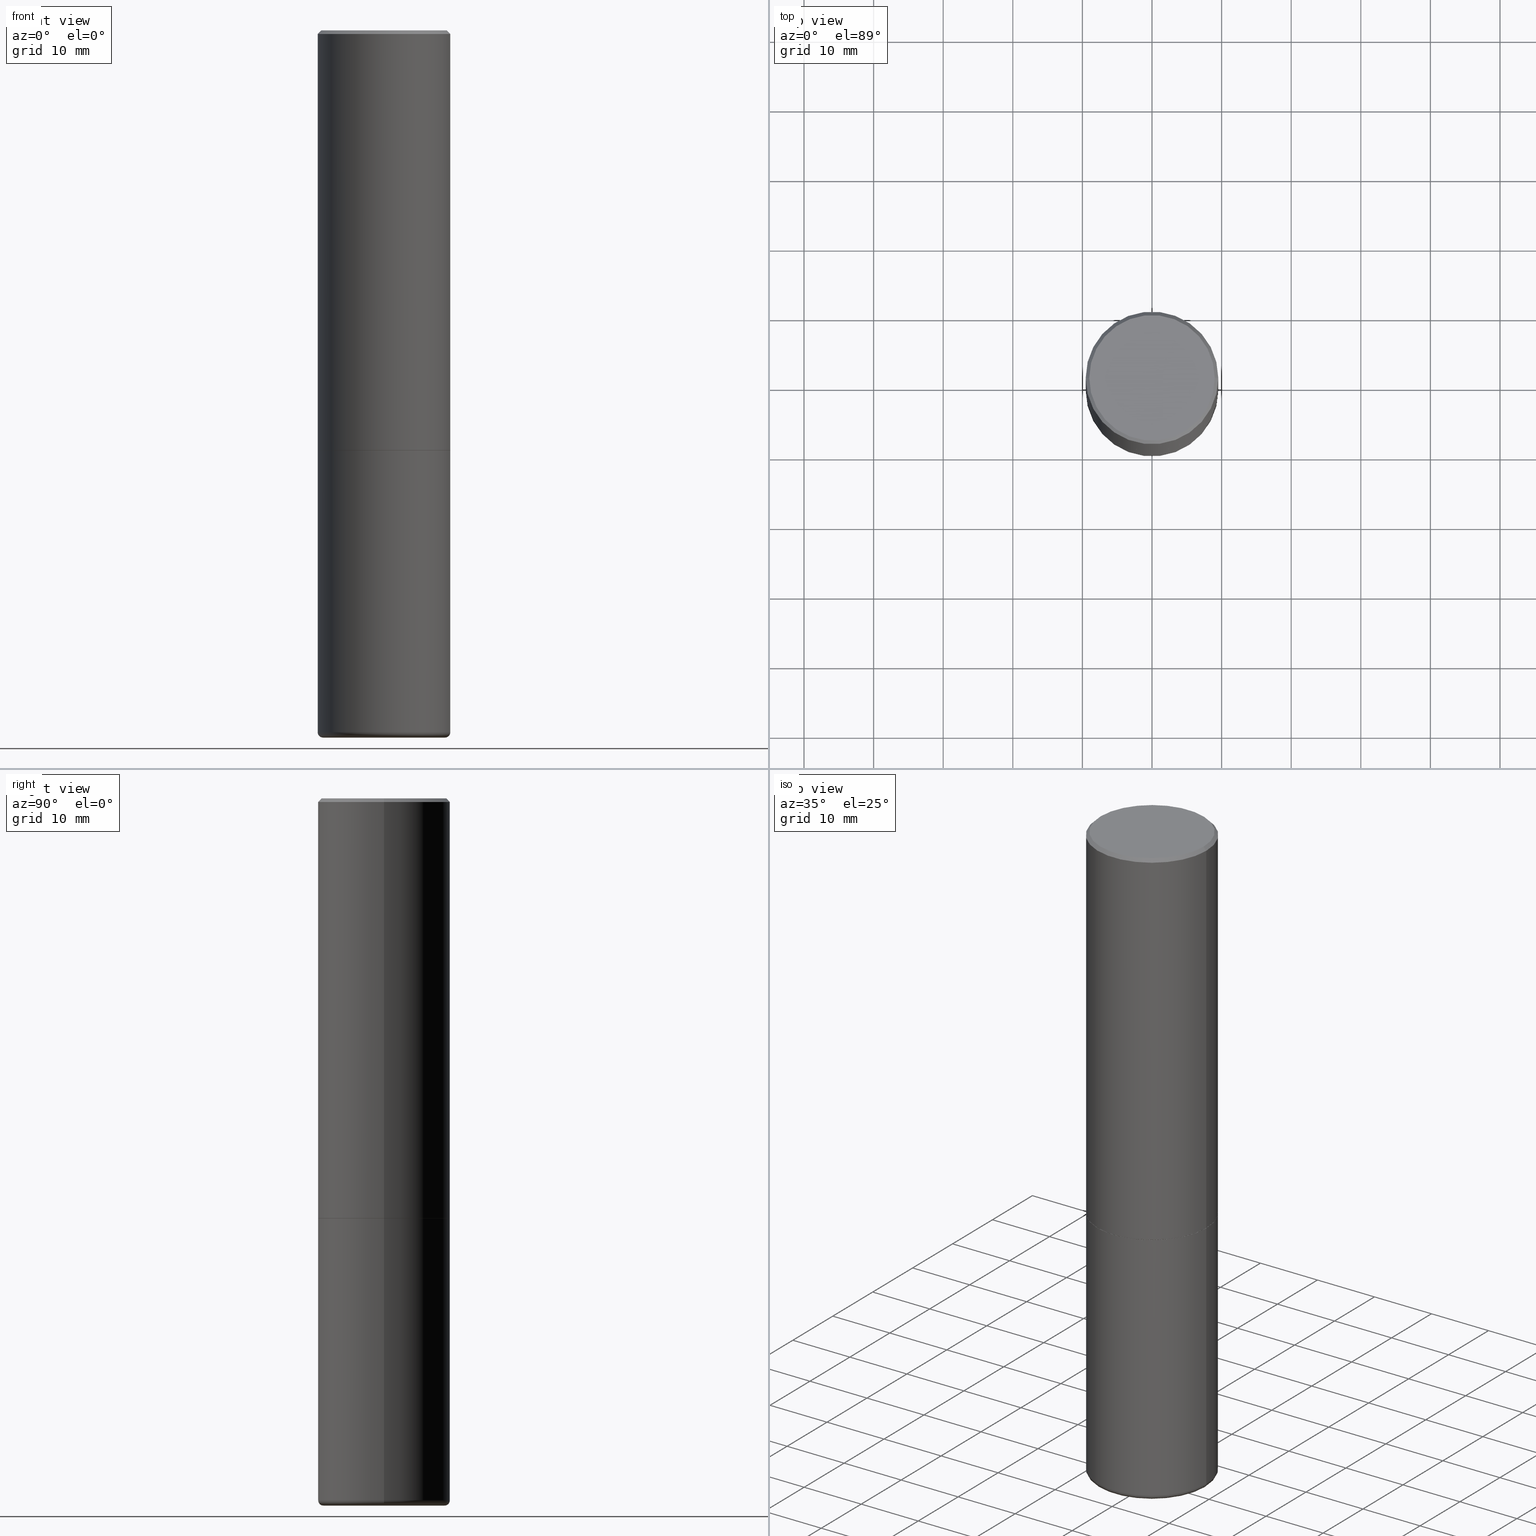
[diagram: canonical four-view strip — front | top / right | iso, engineering-drawing reading convention]
A machine part, canonical four-view strip (front | top / right | iso — engineering-drawing reading convention). The complete STEP part file that produces these views, byte-faithful:
ISO-10303-21;
HEADER;
FILE_DESCRIPTION (( 'STEP AP203' ),
    '1' );
FILE_NAME ('34807.STEP',
    '2022-11-02T20:19:45',
    ( '' ),
    ( '' ),
    'SwSTEP 2.0',
    'SolidWorks 2022',
    '' );
FILE_SCHEMA (( 'CONFIG_CONTROL_DESIGN' ));
ENDSEC;

DATA;
#1 = DIRECTION ( 'NONE',  ( -2.445468806185136597E-29, 3.491481338843145583E-15, 1.000000000000000000 ) ) ;
#2 = FACE_OUTER_BOUND ( 'NONE', #266, .T. ) ;
#3 = DATE_AND_TIME ( #459, #409 ) ;
#4 = DIRECTION ( 'NONE',  ( 1.000000000000000000, -6.982962677686268288E-15, 0.000000000000000000 ) ) ;
#5 = CONICAL_SURFACE ( 'NONE', #301, 0.3447382039350492255, 1.562069680534943661 ) ;
#6 = APPROVAL_PERSON_ORGANIZATION ( #194, #453, #90 ) ;
#7 = ADVANCED_BREP_SHAPE_REPRESENTATION ( '34807', ( #162, #9, #476 ), #335 ) ;
#8 = LINE ( 'NONE', #16, #136 ) ;
#9 = MANIFOLD_SOLID_BREP ( 'Body-Move/Copy2[2]', #197 ) ;
#10 = FACE_OUTER_BOUND ( 'NONE', #222, .T. ) ;
#11 = ORIENTED_EDGE ( 'NONE', *, *, #111, .F. ) ;
#12 = DIRECTION ( 'NONE',  ( 1.000000000000000000, -6.982962677686263555E-15, 4.883557194083111219E-29 ) ) ;
#13 = EDGE_CURVE ( 'NONE', #386, #225, #66, .T. ) ;
#14 = EDGE_LOOP ( 'NONE', ( #146, #341, #187, #445 ) ) ;
#15 = COORDINATED_UNIVERSAL_TIME_OFFSET ( 5, 0, .BEHIND. ) ;
#16 = CARTESIAN_POINT ( 'NONE',  ( 0.3749999999999992784, -2.642516375941182506E-15, -0.02000000000000018083 ) ) ;
#17 = VERTEX_POINT ( 'NONE', #165 ) ;
#18 = DIRECTION ( 'NONE',  ( -2.445468806185136597E-29, 3.491481338843145583E-15, 1.000000000000000000 ) ) ;
#19 = UNCERTAINTY_MEASURE_WITH_UNIT (LENGTH_MEASURE( 1.000000000000000082E-05 ), #77, 'distance_accuracy_value', 'NONE');
#20 = EDGE_LOOP ( 'NONE', ( #435, #322, #305, #482 ) ) ;
#21 = DATE_AND_TIME ( #185, #208 ) ;
#22 = DATE_AND_TIME ( #474, #270 ) ;
#23 = CARTESIAN_POINT ( 'NONE',  ( 2.478951750578617898E-15, 0.3549999999999990941, -1.237341619044263272E-15 ) ) ;
#24 = EDGE_LOOP ( 'NONE', ( #95, #207, #433, #218 ) ) ;
#25 = DIRECTION ( 'NONE',  ( 2.445468806185136597E-29, -3.491481338843145583E-15, -1.000000000000000000 ) ) ;
#26 = ADVANCED_FACE ( 'NONE', ( #209 ), #313, .F. ) ;
#27 = ORIENTED_EDGE ( 'NONE', *, *, #246, .F. ) ;
#28 = PRODUCT_DEFINITION_FORMATION_WITH_SPECIFIED_SOURCE ( 'ANY', '', #89, .NOT_KNOWN. ) ;
#29 = ORIENTED_EDGE ( 'NONE', *, *, #195, .F. ) ;
#30 = CYLINDRICAL_SURFACE ( 'NONE', #430, 0.3749999999999993894 ) ;
#31 = VERTEX_POINT ( 'NONE', #478 ) ;
#32 = ADVANCED_FACE ( 'NONE', ( #487 ), #373, .T. ) ;
#33 = LINE ( 'NONE', #172, #353 ) ;
#34 = DIRECTION ( 'NONE',  ( 1.000000000000000000, -6.982962677686265133E-15, 0.000000000000000000 ) ) ;
#35 = CARTESIAN_POINT ( 'NONE',  ( 0.3749999999999995559, -1.090738770254597397E-14, -2.373999999999999666 ) ) ;
#36 = DIRECTION ( 'NONE',  ( 1.000000000000000000, 0.000000000000000000, 0.000000000000000000 ) ) ;
#37 = DIRECTION ( 'NONE',  ( 1.000000000000000000, -6.982962677686266711E-15, 4.876176775795936353E-29 ) ) ;
#38 = EDGE_CURVE ( 'NONE', #394, #258, #489, .T. ) ;
#39 = DIRECTION ( 'NONE',  ( 1.000000000000000000, -6.982962677686268288E-15, 0.000000000000000000 ) ) ;
#40 = CC_DESIGN_SECURITY_CLASSIFICATION ( #456, ( #28 ) ) ;
#41 = ORIENTED_EDGE ( 'NONE', *, *, #300, .T. ) ;
#42 = DIRECTION ( 'NONE',  ( -1.000000000000000000, 6.982962677686268288E-15, 0.000000000000000000 ) ) ;
#43 = COORDINATED_UNIVERSAL_TIME_OFFSET ( 5, 0, .BEHIND. ) ;
#44 = CC_DESIGN_PERSON_AND_ORGANIZATION_ASSIGNMENT ( #371, #378, ( #456 ) ) ;
#45 = CARTESIAN_POINT ( 'NONE',  ( 9.708513954033757613E-29, -1.386118490355461518E-14, -3.970001142308074993 ) ) ;
#46 = ORIENTED_EDGE ( 'NONE', *, *, #124, .T. ) ;
#47 = ORIENTED_EDGE ( 'NONE', *, *, #486, .T. ) ;
#48 = CARTESIAN_POINT ( 'NONE',  ( 9.708513954033757613E-29, -1.386118490355461518E-14, -3.970001142308074993 ) ) ;
#49 = CIRCLE ( 'NONE', #310, 0.3749999999999995559 ) ;
#50 = AXIS2_PLACEMENT_3D ( 'NONE', #45, #468, #229 ) ;
#51 = EDGE_LOOP ( 'NONE', ( #397, #188 ) ) ;
#52 = ORIENTED_EDGE ( 'NONE', *, *, #246, .T. ) ;
#53 = DIRECTION ( 'NONE',  ( -2.445468806185136597E-29, 3.491481338843145583E-15, 1.000000000000000000 ) ) ;
#54 = VERTEX_POINT ( 'NONE', #444 ) ;
#55 = EDGE_CURVE ( 'NONE', #304, #155, #249, .T. ) ;
#56 = APPROVAL_DATE_TIME ( #22, #453 ) ;
#57 = ORIENTED_EDGE ( 'NONE', *, *, #13, .T. ) ;
#58 = ORIENTED_EDGE ( 'NONE', *, *, #13, .F. ) ;
#59 = CONICAL_SURFACE ( 'NONE', #190, 0.3047407039350492619, 1.535889741755010807 ) ;
#60 = AXIS2_PLACEMENT_3D ( 'NONE', #87, #275, #387 ) ;
#61 = CARTESIAN_POINT ( 'NONE',  ( 0.3749999999999993894, -2.618611004132345678E-15, 1.828566290923473120E-29 ) ) ;
#62 = EDGE_CURVE ( 'NONE', #152, #394, #448, .T. ) ;
#63 = VERTEX_POINT ( 'NONE', #314 ) ;
#64 = ORIENTED_EDGE ( 'NONE', *, *, #492, .F. ) ;
#65 = DIRECTION ( 'NONE',  ( -1.000000000000000000, 6.982962677686265922E-15, -4.876176775795935793E-29 ) ) ;
#66 = CIRCLE ( 'NONE', #359, 0.3749999999999993339 ) ;
#67 = CIRCLE ( 'NONE', #466, 0.3739999999999995550 ) ;
#68 = CARTESIAN_POINT ( 'NONE',  ( 0.3749999999999995559, -1.091087918388481698E-14, -2.375000000000000000 ) ) ;
#69 = ORIENTED_EDGE ( 'NONE', *, *, #124, .F. ) ;
#70 = ADVANCED_FACE ( 'NONE', ( #237 ), #59, .F. ) ;
#71 = DIRECTION ( 'NONE',  ( -0.7071067811865232589, 7.493145998870265808E-15, 0.7071067811865715536 ) ) ;
#72 = FACE_OUTER_BOUND ( 'NONE', #119, .T. ) ;
#73 = APPLICATION_CONTEXT ( 'configuration controlled 3d designs of mechanical parts and assemblies' ) ;
#74 = CARTESIAN_POINT ( 'NONE',  ( 9.708513954033757613E-29, -1.386118490355461518E-14, -3.970001142308074993 ) ) ;
#75 = ADVANCED_FACE ( 'NONE', ( #404 ), #441, .F. ) ;
#76 = APPROVAL_ROLE ( '' ) ;
#77 =( CONVERSION_BASED_UNIT ( 'INCH', #414 ) LENGTH_UNIT ( ) NAMED_UNIT ( #419 ) );
#78 = CARTESIAN_POINT ( 'NONE',  ( 9.781875224740545266E-29, -1.396592535537258075E-14, -3.999999999999999556 ) ) ;
#79 = AXIS2_PLACEMENT_3D ( 'NONE', #463, #346, #82 ) ;
#80 = EDGE_CURVE ( 'NONE', #443, #54, #291, .T. ) ;
#81 = EDGE_LOOP ( 'NONE', ( #280, #425, #396 ) ) ;
#82 = DIRECTION ( 'NONE',  ( 1.000000000000000000, -6.982962677686265133E-15, 0.000000000000000000 ) ) ;
#83 = EDGE_LOOP ( 'NONE', ( #132, #161, #11, #64 ) ) ;
#84 = CARTESIAN_POINT ( 'NONE',  ( 5.807988414689699417E-29, -8.292268179752470118E-15, -2.375000000000000000 ) ) ;
#85 = CIRCLE ( 'NONE', #50, 0.3749999999999993339 ) ;
#86 = ORIENTED_EDGE ( 'NONE', *, *, #285, .T. ) ;
#87 = CARTESIAN_POINT ( 'NONE',  ( 5.807988414689699417E-29, -8.292268179752470118E-15, -2.375000000000000000 ) ) ;
#88 = DIRECTION ( 'NONE',  ( -2.445468806185136597E-29, 3.491481338843145583E-15, 1.000000000000000000 ) ) ;
#89 = PRODUCT ( '34807', '34807', '', ( #471 ) ) ;
#90 = APPROVAL_ROLE ( '' ) ;
#91 = VERTEX_POINT ( 'NONE', #239 ) ;
#92 = DIRECTION ( 'NONE',  ( -2.445468806185136597E-29, 3.491481338843145583E-15, 1.000000000000000000 ) ) ;
#93 = AXIS2_PLACEMENT_3D ( 'NONE', #214, #98, #139 ) ;
#94 = CIRCLE ( 'NONE', #60, 0.3749999999999995559 ) ;
#95 = ORIENTED_EDGE ( 'NONE', *, *, #421, .F. ) ;
#96 = CARTESIAN_POINT ( 'NONE',  ( 9.781021626775434250E-29, -1.396470664370530441E-14, -3.999650947105539256 ) ) ;
#97 = CARTESIAN_POINT ( 'NONE',  ( 4.890937612370316949E-31, -6.982962677686354471E-17, -0.02000000000000018083 ) ) ;
#98 = DIRECTION ( 'NONE',  ( -2.445468806185136597E-29, 3.491481338843145583E-15, 1.000000000000000000 ) ) ;
#99 = FACE_OUTER_BOUND ( 'NONE', #20, .T. ) ;
#100 = VECTOR ( 'NONE', #290, 39.37007874015748143 ) ;
#101 = VECTOR ( 'NONE', #109, 39.37007874015748143 ) ;
#102 = DIRECTION ( 'NONE',  ( -2.445468806185136597E-29, 3.491481338843145583E-15, 1.000000000000000000 ) ) ;
#103 = DIRECTION ( 'NONE',  ( -2.445468806185136597E-29, 3.491481338843145583E-15, 1.000000000000000000 ) ) ;
#104 = EDGE_CURVE ( 'NONE', #386, #155, #395, .T. ) ;
#105 = AXIS2_PLACEMENT_3D ( 'NONE', #362, #399, #273 ) ;
#106 = CIRCLE ( 'NONE', #360, 0.3047407039350492619 ) ;
#107 = FACE_OUTER_BOUND ( 'NONE', #429, .T. ) ;
#108 = PERSON_AND_ORGANIZATION_ROLE ( 'creator' ) ;
#109 = DIRECTION ( 'NONE',  ( -2.445468806185136877E-29, 3.491481338843145188E-15, 1.000000000000000000 ) ) ;
#110 = DIRECTION ( 'NONE',  ( -2.445468806185136597E-29, 3.491481338843145583E-15, 1.000000000000000000 ) ) ;
#111 = EDGE_CURVE ( 'NONE', #343, #242, #475, .T. ) ;
#112 = DATE_AND_TIME ( #345, #250 ) ;
#113 = DIRECTION ( 'NONE',  ( 2.445468806185136597E-29, -3.491481338843145583E-15, -1.000000000000000000 ) ) ;
#114 = VECTOR ( 'NONE', #71, 39.37007874015748854 ) ;
#115 = AXIS2_PLACEMENT_3D ( 'NONE', #48, #217, #12 ) ;
#116 = ORIENTED_EDGE ( 'NONE', *, *, #55, .T. ) ;
#117 = ORIENTED_EDGE ( 'NONE', *, *, #285, .F. ) ;
#118 = DIRECTION ( 'NONE',  ( 1.000000000000000000, -6.982962677686265133E-15, 0.000000000000000000 ) ) ;
#119 = EDGE_LOOP ( 'NONE', ( #240, #469, #233, #465 ) ) ;
#120 = PERSON_AND_ORGANIZATION ( #388, #168 ) ;
#121 = DIRECTION ( 'NONE',  ( 0.7071067811865476838, -7.319954787623257623E-15, -0.7071067811865473507 ) ) ;
#122 = CC_DESIGN_PERSON_AND_ORGANIZATION_ASSIGNMENT ( #120, #177, ( #89 ) ) ;
#123 = APPROVAL_PERSON_ORGANIZATION ( #227, #126, #381 ) ;
#124 = EDGE_CURVE ( 'NONE', #343, #225, #344, .T. ) ;
#125 = DIRECTION ( 'NONE',  ( 1.000000000000000000, -6.982962677686268288E-15, 0.000000000000000000 ) ) ;
#126 = APPROVAL ( #252, 'UNSPECIFIED' ) ;
#127 = VERTEX_POINT ( 'NONE', #323 ) ;
#128 = DIRECTION ( 'NONE',  ( -2.445468806185136597E-29, 3.491481338843145583E-15, 1.000000000000000000 ) ) ;
#129 = DIRECTION ( 'NONE',  ( -2.445468806185136597E-29, 3.491481338843145583E-15, 1.000000000000000000 ) ) ;
#130 = CIRCLE ( 'NONE', #375, 0.3549999999999990941 ) ;
#131 = DIRECTION ( 'NONE',  ( 2.445468806185136597E-29, -3.491481338843145583E-15, -1.000000000000000000 ) ) ;
#132 = ORIENTED_EDGE ( 'NONE', *, *, #368, .T. ) ;
#133 = DIRECTION ( 'NONE',  ( -2.445468806185136597E-29, 3.491481338843145583E-15, 1.000000000000000000 ) ) ;
#134 = DIRECTION ( 'NONE',  ( 2.438088387897960049E-29, -3.491481338843145188E-15, -1.000000000000000000 ) ) ;
#135 = DIRECTION ( 'NONE',  ( -1.000000000000000000, 6.982962677686267499E-15, 0.000000000000000000 ) ) ;
#136 = VECTOR ( 'NONE', #121, 39.37007874015748143 ) ;
#137 = DIRECTION ( 'NONE',  ( 0.7071067811865232589, -2.468850131082003836E-15, 0.7071067811865715536 ) ) ;
#138 = CARTESIAN_POINT ( 'NONE',  ( -1.043851414335219820E-46, 1.490343170380447200E-32, 4.268512490100411279E-18 ) ) ;
#139 = DIRECTION ( 'NONE',  ( 1.000000000000000000, -6.982962677686266711E-15, 4.876176775795936353E-29 ) ) ;
#140 = CIRCLE ( 'NONE', #400, 0.3447382039350492255 ) ;
#141 = CC_DESIGN_APPROVAL ( #477, ( #28 ) ) ;
#142 = LINE ( 'NONE', #181, #101 ) ;
#143 = CARTESIAN_POINT ( 'NONE',  ( 0.000000000000000000, 0.000000000000000000, 0.000000000000000000 ) ) ;
#144 = ADVANCED_FACE ( 'NONE', ( #99 ), #244, .T. ) ;
#145 = CARTESIAN_POINT ( 'NONE',  ( 0.3749999999999993339, -1.647979590768696204E-14, -3.970001142308074993 ) ) ;
#146 = ORIENTED_EDGE ( 'NONE', *, *, #398, .T. ) ;
#147 = APPROVAL_DATE_TIME ( #3, #126 ) ;
#148 = DIRECTION ( 'NONE',  ( 1.000000000000000000, -6.982962677686267499E-15, 0.000000000000000000 ) ) ;
#149 = ORIENTED_EDGE ( 'NONE', *, *, #470, .T. ) ;
#150 = ORIENTED_EDGE ( 'NONE', *, *, #80, .T. ) ;
#151 = CARTESIAN_POINT ( 'NONE',  ( 5.807988414689699417E-29, -8.292268179752470118E-15, -2.375000000000000000 ) ) ;
#152 = VERTEX_POINT ( 'NONE', #35 ) ;
#153 = CALENDAR_DATE ( 2022, 2, 11 ) ;
#154 = DIRECTION ( 'NONE',  ( 0.9999619230641714207, -6.890705306874777996E-15, -0.008726535498355246501 ) ) ;
#155 = VERTEX_POINT ( 'NONE', #68 ) ;
#156 = EDGE_CURVE ( 'NONE', #443, #127, #210, .T. ) ;
#157 = EDGE_LOOP ( 'NONE', ( #47, #116 ) ) ;
#158 = DIRECTION ( 'NONE',  ( 1.000000000000000000, -6.982962677686265133E-15, 4.876231632512000515E-29 ) ) ;
#159 = AXIS2_PLACEMENT_3D ( 'NONE', #390, #134, #485 ) ;
#160 = AXIS2_PLACEMENT_3D ( 'NONE', #342, #53, #118 ) ;
#161 = ORIENTED_EDGE ( 'NONE', *, *, #317, .T. ) ;
#162 = MANIFOLD_SOLID_BREP ( 'Body-Move/Copy2[1]', #319 ) ;
#163 = EDGE_CURVE ( 'NONE', #54, #152, #247, .T. ) ;
#164 = CARTESIAN_POINT ( 'NONE',  ( 0.3749999999999993894, -2.618611004132345678E-15, 1.828566290923473120E-29 ) ) ;
#165 = CARTESIAN_POINT ( 'NONE',  ( -0.3549999999999990941, 2.513866563967049547E-15, 4.268512490082953109E-18 ) ) ;
#166 = VECTOR ( 'NONE', #201, 39.37007874015748143 ) ;
#167 = DIRECTION ( 'NONE',  ( 1.000000000000000000, -6.982962677686267499E-15, 0.000000000000000000 ) ) ;
#168 = ORGANIZATION ( 'UNSPECIFIED', 'UNSPECIFIED', '' ) ;
#169 = DIRECTION ( 'NONE',  ( -1.000000000000000000, 7.105427357601001859E-15, 0.000000000000000000 ) ) ;
#170 = ADVANCED_FACE ( 'NONE', ( #2 ), #173, .T. ) ;
#171 = DIRECTION ( 'NONE',  ( 2.445468806185136597E-29, -3.491481338843145583E-15, -1.000000000000000000 ) ) ;
#172 = CARTESIAN_POINT ( 'NONE',  ( -0.3749999999999992784, 2.548781377355481985E-15, -0.02000000000000018083 ) ) ;
#173 = TOROIDAL_SURFACE ( 'NONE', #464, 0.3450000000000003064, 0.02999999999999943337 ) ;
#174 = VECTOR ( 'NONE', #307, 39.37007874015748143 ) ;
#175 = FACE_OUTER_BOUND ( 'NONE', #193, .T. ) ;
#176 = DIRECTION ( 'NONE',  ( 1.000000000000000000, -6.982962677686263555E-15, 4.883557194083111219E-29 ) ) ;
#177 = PERSON_AND_ORGANIZATION_ROLE ( 'design_owner' ) ;
#178 = CARTESIAN_POINT ( 'NONE',  ( 9.781875224740545266E-29, -1.396592535537258075E-14, -3.999999999999999556 ) ) ;
#179 = VECTOR ( 'NONE', #439, 39.37007874015748143 ) ;
#180 = AXIS2_PLACEMENT_3D ( 'NONE', #151, #110, #379 ) ;
#181 = CARTESIAN_POINT ( 'NONE',  ( -0.3749999999999993894, 2.664535259100371358E-15, -1.844600658845586515E-29 ) ) ;
#182 =( NAMED_UNIT ( * ) SI_UNIT ( $, .STERADIAN. ) SOLID_ANGLE_UNIT ( ) );
#183 = CARTESIAN_POINT ( 'NONE',  ( 4.890937612370316949E-31, -6.982962677686354471E-17, -0.02000000000000018083 ) ) ;
#184 = VERTEX_POINT ( 'NONE', #454 ) ;
#185 = CALENDAR_DATE ( 2022, 2, 11 ) ;
#186 = DIRECTION ( 'NONE',  ( -2.445468806185136597E-29, 3.491481338843145583E-15, 1.000000000000000000 ) ) ;
#187 = ORIENTED_EDGE ( 'NONE', *, *, #363, .F. ) ;
#188 = ORIENTED_EDGE ( 'NONE', *, *, #80, .F. ) ;
#189 = COORDINATED_UNIVERSAL_TIME_OFFSET ( 5, 0, .BEHIND. ) ;
#190 = AXIS2_PLACEMENT_3D ( 'NONE', #96, #25, #274 ) ;
#191 = ORIENTED_EDGE ( 'NONE', *, *, #426, .F. ) ;
#192 = CARTESIAN_POINT ( 'NONE',  ( 5.807988414689699417E-29, -8.292268179752470118E-15, -2.375000000000000000 ) ) ;
#193 = EDGE_LOOP ( 'NONE', ( #57, #263, #422, #264 ) ) ;
#194 = PERSON_AND_ORGANIZATION ( #388, #168 ) ;
#195 = EDGE_CURVE ( 'NONE', #127, #152, #49, .T. ) ;
#196 = DIRECTION ( 'NONE',  ( -0.9999619230641714207, 6.952228252019235511E-15, -0.008726535498355246501 ) ) ;
#197 = CLOSED_SHELL ( 'NONE', ( #32, #144, #272, #438, #202, #309, #403, #26 ) ) ;
#198 = CIRCLE ( 'NONE', #245, 0.3749999999999992784 ) ;
#199 = DIRECTION ( 'NONE',  ( 1.000000000000000000, -6.982962677686269866E-15, 0.000000000000000000 ) ) ;
#200 = DIRECTION ( 'NONE',  ( -1.000000000000000000, 6.982962677686265133E-15, 0.000000000000000000 ) ) ;
#201 = DIRECTION ( 'NONE',  ( -2.445468806185136877E-29, 3.491481338843145188E-15, 1.000000000000000000 ) ) ;
#202 = ADVANCED_FACE ( 'NONE', ( #407 ), #30, .T. ) ;
#203 = DIRECTION ( 'NONE',  ( 2.438088387897960049E-29, -3.491481338843145188E-15, -1.000000000000000000 ) ) ;
#204 = FACE_OUTER_BOUND ( 'NONE', #484, .T. ) ;
#205 = CC_DESIGN_PERSON_AND_ORGANIZATION_ASSIGNMENT ( #333, #411, ( #28 ) ) ;
#206 = AXIS2_PLACEMENT_3D ( 'NONE', #138, #248, #282 ) ;
#207 = ORIENTED_EDGE ( 'NONE', *, *, #195, .T. ) ;
#208 = LOCAL_TIME ( 16, 19, 45.00000000000000000, #43 ) ;
#209 = FACE_OUTER_BOUND ( 'NONE', #416, .T. ) ;
#210 = LINE ( 'NONE', #367, #114 ) ;
#211 = ADVANCED_FACE ( 'NONE', ( #406 ), #5, .F. ) ;
#212 = AXIS2_PLACEMENT_3D ( 'NONE', #480, #92, #361 ) ;
#213 = CONICAL_SURFACE ( 'NONE', #384, 0.3047407039350492619, 1.535889741755010807 ) ;
#214 = CARTESIAN_POINT ( 'NONE',  ( 0.000000000000000000, 0.000000000000000000, 0.000000000000000000 ) ) ;
#215 = APPROVAL_DATE_TIME ( #306, #477 ) ;
#216 = CARTESIAN_POINT ( 'NONE',  ( 0.3450000000000003064, -1.627030702735637846E-14, -3.970001142308074993 ) ) ;
#217 = DIRECTION ( 'NONE',  ( -2.445468806185136597E-29, 3.491481338843145583E-15, 1.000000000000000000 ) ) ;
#218 = ORIENTED_EDGE ( 'NONE', *, *, #350, .F. ) ;
#219 = CIRCLE ( 'NONE', #232, 0.02999999999999940561 ) ;
#220 = AXIS2_PLACEMENT_3D ( 'NONE', #243, #488, #135 ) ;
#221 = CARTESIAN_POINT ( 'NONE',  ( 0.3749999999999992784, -2.642516375941182506E-15, -0.02000000000000018083 ) ) ;
#222 = EDGE_LOOP ( 'NONE', ( #356, #27, #41, #347 ) ) ;
#223 = PERSON_AND_ORGANIZATION_ROLE ( 'design_supplier' ) ;
#224 = CARTESIAN_POINT ( 'NONE',  ( -0.3749999999999995559, -8.412191282553170896E-15, -2.375000000000000000 ) ) ;
#225 = VERTEX_POINT ( 'NONE', #284 ) ;
#226 = ORIENTED_EDGE ( 'NONE', *, *, #324, .T. ) ;
#227 = PERSON_AND_ORGANIZATION ( #388, #168 ) ;
#228 = CC_DESIGN_DATE_AND_TIME_ASSIGNMENT ( #21, #231, ( #456 ) ) ;
#229 = DIRECTION ( 'NONE',  ( 1.000000000000000000, -6.982962677686269866E-15, 0.000000000000000000 ) ) ;
#230 = ORIENTED_EDGE ( 'NONE', *, *, #324, .F. ) ;
#231 = DATE_TIME_ROLE ( 'classification_date' ) ;
#232 = AXIS2_PLACEMENT_3D ( 'NONE', #216, #455, #251 ) ;
#233 = ORIENTED_EDGE ( 'NONE', *, *, #38, .T. ) ;
#234 = CARTESIAN_POINT ( 'NONE',  ( -0.3739999999999995550, -5.629539893661476182E-15, -2.375000000000000000 ) ) ;
#235 = CC_DESIGN_DATE_AND_TIME_ASSIGNMENT ( #112, #260, ( #279 ) ) ;
#236 = COORDINATED_UNIVERSAL_TIME_OFFSET ( 5, 0, .BEHIND. ) ;
#237 = FACE_OUTER_BOUND ( 'NONE', #81, .T. ) ;
#238 = CONICAL_SURFACE ( 'NONE', #393, 0.3447382039350492255, 1.562069680534943661 ) ;
#239 = CARTESIAN_POINT ( 'NONE',  ( 0.3549999999999990941, -2.538996582575035132E-15, 4.268512490117958041E-18 ) ) ;
#240 = ORIENTED_EDGE ( 'NONE', *, *, #470, .F. ) ;
#241 = EDGE_CURVE ( 'NONE', #242, #343, #140, .T. ) ;
#242 = VERTEX_POINT ( 'NONE', #365 ) ;
#243 = CARTESIAN_POINT ( 'NONE',  ( 4.890937612370316949E-31, -6.982962677686354471E-17, -0.02000000000000018083 ) ) ;
#244 = CYLINDRICAL_SURFACE ( 'NONE', #392, 0.3749999999999993894 ) ;
#245 = AXIS2_PLACEMENT_3D ( 'NONE', #412, #186, #148 ) ;
#246 = EDGE_CURVE ( 'NONE', #17, #91, #408, .T. ) ;
#247 = LINE ( 'NONE', #402, #449 ) ;
#248 = DIRECTION ( 'NONE',  ( -2.445468806185136597E-29, 3.491481338843145583E-15, 1.000000000000000000 ) ) ;
#249 = CIRCLE ( 'NONE', #105, 0.3749999999999995559 ) ;
#250 = LOCAL_TIME ( 16, 19, 45.00000000000000000, #462 ) ;
#251 = DIRECTION ( 'NONE',  ( 1.000000000000000000, -6.982962677686276966E-15, 0.000000000000000000 ) ) ;
#252 = APPROVAL_STATUS ( 'not_yet_approved' ) ;
#253 = CARTESIAN_POINT ( 'NONE',  ( 0.3047407039350492619, -1.605537963289119756E-14, -3.999650947105539256 ) ) ;
#254 = ADVANCED_FACE ( 'NONE', ( #175 ), #447, .T. ) ;
#255 = PERSON_AND_ORGANIZATION ( #388, #168 ) ;
#256 = DIRECTION ( 'NONE',  ( 1.000000000000000000, -6.982962677686265922E-15, 4.876176775795935793E-29 ) ) ;
#257 = ORIENTED_EDGE ( 'NONE', *, *, #241, .T. ) ;
#258 = VERTEX_POINT ( 'NONE', #331 ) ;
#259 = AXIS2_PLACEMENT_3D ( 'NONE', #278, #358, #125 ) ;
#260 = DATE_TIME_ROLE ( 'creation_date' ) ;
#261 = TOROIDAL_SURFACE ( 'NONE', #115, 0.3450000000000003064, 0.02999999999999943337 ) ;
#262 = DIRECTION ( 'NONE',  ( -1.000000000000000000, 6.982962677686267499E-15, 0.000000000000000000 ) ) ;
#263 = ORIENTED_EDGE ( 'NONE', *, *, #265, .T. ) ;
#264 = ORIENTED_EDGE ( 'NONE', *, *, #104, .F. ) ;
#265 = EDGE_CURVE ( 'NONE', #225, #304, #405, .T. ) ;
#266 = EDGE_LOOP ( 'NONE', ( #69, #271, #86, #230 ) ) ;
#267 = APPLICATION_PROTOCOL_DEFINITION ( 'international standard', 'config_control_design', 1994, #73 ) ;
#268 = PLANE ( 'NONE',  #417 ) ;
#269 = EDGE_LOOP ( 'NONE', ( #467, #308, #349, #374 ) ) ;
#270 = LOCAL_TIME ( 16, 19, 45.00000000000000000, #236 ) ;
#271 = ORIENTED_EDGE ( 'NONE', *, *, #111, .T. ) ;
#272 = ADVANCED_FACE ( 'NONE', ( #72 ), #490, .T. ) ;
#273 = DIRECTION ( 'NONE',  ( 1.000000000000000000, -6.982962677686265133E-15, 0.000000000000000000 ) ) ;
#274 = DIRECTION ( 'NONE',  ( -1.000000000000000000, 6.982962677686265133E-15, 0.000000000000000000 ) ) ;
#275 = DIRECTION ( 'NONE',  ( -2.445468806185136597E-29, 3.491481338843145583E-15, 1.000000000000000000 ) ) ;
#276 = AXIS2_PLACEMENT_3D ( 'NONE', #97, #128, #167 ) ;
#277 = VECTOR ( 'NONE', #196, 39.37007874015748854 ) ;
#278 = CARTESIAN_POINT ( 'NONE',  ( 5.807988414689699417E-29, -8.292268179752470118E-15, -2.375000000000000000 ) ) ;
#279 = PRODUCT_DEFINITION ( 'UNKNOWN', '', #28, #380 ) ;
#280 = ORIENTED_EDGE ( 'NONE', *, *, #332, .F. ) ;
#281 = DIRECTION ( 'NONE',  ( 1.000000000000000000, -6.982962677686268288E-15, 0.000000000000000000 ) ) ;
#282 = DIRECTION ( 'NONE',  ( 1.000000000000000000, -6.982962677686265133E-15, 4.876231632512000515E-29 ) ) ;
#283 = CARTESIAN_POINT ( 'NONE',  ( -0.3450000000000003064, -1.140981246518226815E-14, -3.970001142308074993 ) ) ;
#284 = CARTESIAN_POINT ( 'NONE',  ( -0.3749999999999993339, -8.412191282553172474E-15, -3.970001142308074993 ) ) ;
#285 = EDGE_CURVE ( 'NONE', #242, #386, #219, .T. ) ;
#286 = PRODUCT_DEFINITION_SHAPE ( 'NONE', 'NONE',  #279 ) ;
#287 = AXIS2_PLACEMENT_3D ( 'NONE', #451, #102, #364 ) ;
#288 = CARTESIAN_POINT ( 'NONE',  ( -0.3749999999999993894, 2.664535259100371358E-15, -1.844600658845586515E-29 ) ) ;
#289 = DIRECTION ( 'NONE',  ( -2.445468806185136597E-29, 3.491481338843145583E-15, 1.000000000000000000 ) ) ;
#290 = DIRECTION ( 'NONE',  ( -2.445468806185136877E-29, 3.491481338843145188E-15, 1.000000000000000000 ) ) ;
#291 = CIRCLE ( 'NONE', #212, 0.3739999999999995550 ) ;
#292 = APPROVAL_PERSON_ORGANIZATION ( #418, #477, #76 ) ;
#293 = ADVANCED_FACE ( 'NONE', ( #107 ), #410, .T. ) ;
#294 = FACE_OUTER_BOUND ( 'NONE', #337, .T. ) ;
#295 = DIRECTION ( 'NONE',  ( 0.000000000000000000, 0.000000000000000000, 1.000000000000000000 ) ) ;
#296 = CARTESIAN_POINT ( 'NONE',  ( 9.781021626775434250E-29, -1.396470664370530441E-14, -3.999650947105539256 ) ) ;
#297 = ORIENTED_EDGE ( 'NONE', *, *, #163, .T. ) ;
#298 =( NAMED_UNIT ( * ) PLANE_ANGLE_UNIT ( ) SI_UNIT ( $, .RADIAN. ) );
#299 = DIRECTION ( 'NONE',  ( -2.445468806185136597E-29, 3.491481338843145583E-15, 1.000000000000000000 ) ) ;
#300 = EDGE_CURVE ( 'NONE', #17, #258, #33, .T. ) ;
#301 = AXIS2_PLACEMENT_3D ( 'NONE', #370, #171, #325 ) ;
#302 = CONICAL_SURFACE ( 'NONE', #180, 0.3739999999999995550, 0.7853981633974141952 ) ;
#303 = CARTESIAN_POINT ( 'NONE',  ( -0.3447382039350492255, -1.135653136718824702E-14, -3.999999999999999556 ) ) ;
#304 = VERTEX_POINT ( 'NONE', #224 ) ;
#305 = ORIENTED_EDGE ( 'NONE', *, *, #38, .F. ) ;
#306 = DATE_AND_TIME ( #153, #431 ) ;
#307 = DIRECTION ( 'NONE',  ( -0.9993908270190957621, 6.856857904024558837E-15, -0.03489949670250019204 ) ) ;
#308 = ORIENTED_EDGE ( 'NONE', *, *, #426, .T. ) ;
#309 = ADVANCED_FACE ( 'NONE', ( #294 ), #302, .T. ) ;
#310 = AXIS2_PLACEMENT_3D ( 'NONE', #491, #1, #34 ) ;
#311 = VECTOR ( 'NONE', #154, 39.37007874015748854 ) ;
#312 = EDGE_LOOP ( 'NONE', ( #257, #46, #58, #117 ) ) ;
#313 = PLANE ( 'NONE',  #352 ) ;
#314 = CARTESIAN_POINT ( 'NONE',  ( 0.3047407039350492619, -1.605537963289119756E-14, -3.999650947105539256 ) ) ;
#315 = SHAPE_DEFINITION_REPRESENTATION ( #286, #7 ) ;
#316 = CARTESIAN_POINT ( 'NONE',  ( -1.043851414335219820E-46, 1.490343170380447200E-32, 4.268512490100411279E-18 ) ) ;
#317 = EDGE_CURVE ( 'NONE', #63, #242, #336, .T. ) ;
#318 = CARTESIAN_POINT ( 'NONE',  ( 9.708513954033757613E-29, -1.386118490355461518E-14, -3.970001142308074993 ) ) ;
#319 = CLOSED_SHELL ( 'NONE', ( #211, #385, #254, #70, #461, #75, #293, #170, #434 ) ) ;
#320 = AXIS2_PLACEMENT_3D ( 'NONE', #183, #113, #262 ) ;
#321 = ORIENTED_EDGE ( 'NONE', *, *, #156, .F. ) ;
#322 = ORIENTED_EDGE ( 'NONE', *, *, #421, .T. ) ;
#323 = CARTESIAN_POINT ( 'NONE',  ( -0.3749999999999995559, -1.514767903494871085E-15, -2.373999999999999666 ) ) ;
#324 = EDGE_CURVE ( 'NONE', #225, #386, #85, .T. ) ;
#325 = DIRECTION ( 'NONE',  ( -1.000000000000000000, 6.982962677686268288E-15, 0.000000000000000000 ) ) ;
#326 = DIRECTION ( 'NONE',  ( -0.7071067811865476838, 2.468850131082258638E-15, -0.7071067811865473507 ) ) ;
#327 = AXIS2_PLACEMENT_3D ( 'NONE', #357, #133, #281 ) ;
#328 = CIRCLE ( 'NONE', #160, 0.3047407039350492619 ) ;
#329 = CARTESIAN_POINT ( 'NONE',  ( 0.000000000000000000, 0.000000000000000000, 0.000000000000000000 ) ) ;
#330 =( LENGTH_UNIT ( ) NAMED_UNIT ( * ) SI_UNIT ( $, .METRE. ) );
#331 = CARTESIAN_POINT ( 'NONE',  ( -0.3749999999999992784, 2.548781377355481985E-15, -0.02000000000000018083 ) ) ;
#332 = EDGE_CURVE ( 'NONE', #31, #184, #458, .T. ) ;
#333 = PERSON_AND_ORGANIZATION ( #388, #168 ) ;
#334 = DIRECTION ( 'NONE',  ( 1.000000000000000000, -6.982962677686266711E-15, 4.876176775795936353E-29 ) ) ;
#335 =( GEOMETRIC_REPRESENTATION_CONTEXT ( 3 ) GLOBAL_UNCERTAINTY_ASSIGNED_CONTEXT ( ( #19 ) ) GLOBAL_UNIT_ASSIGNED_CONTEXT ( ( #77, #298, #182 ) ) REPRESENTATION_CONTEXT ( 'NONE', 'WORKASPACE' ) );
#336 = LINE ( 'NONE', #424, #311 ) ;
#337 = EDGE_LOOP ( 'NONE', ( #321, #150, #297, #29 ) ) ;
#338 = SECURITY_CLASSIFICATION_LEVEL ( 'unclassified' ) ;
#339 = EDGE_CURVE ( 'NONE', #31, #63, #340, .T. ) ;
#340 = LINE ( 'NONE', #253, #450 ) ;
#341 = ORIENTED_EDGE ( 'NONE', *, *, #156, .T. ) ;
#342 = CARTESIAN_POINT ( 'NONE',  ( 9.781021626775434250E-29, -1.396470664370530441E-14, -3.999650947105539256 ) ) ;
#343 = VERTEX_POINT ( 'NONE', #303 ) ;
#344 = CIRCLE ( 'NONE', #383, 0.02999999999999940561 ) ;
#345 = CALENDAR_DATE ( 2022, 2, 11 ) ;
#346 = DIRECTION ( 'NONE',  ( -2.445468806185136597E-29, 3.491481338843145583E-15, 1.000000000000000000 ) ) ;
#347 = ORIENTED_EDGE ( 'NONE', *, *, #350, .T. ) ;
#348 = DIRECTION ( 'NONE',  ( -2.438088387897960049E-29, 3.491481338843145188E-15, 1.000000000000000000 ) ) ;
#349 = ORIENTED_EDGE ( 'NONE', *, *, #492, .T. ) ;
#350 = EDGE_CURVE ( 'NONE', #258, #394, #198, .T. ) ;
#351 = LINE ( 'NONE', #437, #277 ) ;
#352 = AXIS2_PLACEMENT_3D ( 'NONE', #23, #203, #65 ) ;
#353 = VECTOR ( 'NONE', #326, 39.37007874015748143 ) ;
#354 = ORIENTED_EDGE ( 'NONE', *, *, #332, .T. ) ;
#355 = PRODUCT_RELATED_PRODUCT_CATEGORY ( 'detail', '', ( #89 ) ) ;
#356 = ORIENTED_EDGE ( 'NONE', *, *, #391, .F. ) ;
#357 = CARTESIAN_POINT ( 'NONE',  ( 9.781875224740545266E-29, -1.396592535537258075E-14, -3.999999999999999556 ) ) ;
#358 = DIRECTION ( 'NONE',  ( -2.445468806185136597E-29, 3.491481338843145583E-15, 1.000000000000000000 ) ) ;
#359 = AXIS2_PLACEMENT_3D ( 'NONE', #318, #129, #199 ) ;
#360 = AXIS2_PLACEMENT_3D ( 'NONE', #296, #299, #460 ) ;
#361 = DIRECTION ( 'NONE',  ( 1.000000000000000000, -6.982962677686268288E-15, 0.000000000000000000 ) ) ;
#362 = CARTESIAN_POINT ( 'NONE',  ( 5.807988414689699417E-29, -8.292268179752470118E-15, -2.375000000000000000 ) ) ;
#363 = EDGE_CURVE ( 'NONE', #152, #127, #442, .T. ) ;
#364 = DIRECTION ( 'NONE',  ( 1.000000000000000000, -6.982962677686266711E-15, 4.876176775795936353E-29 ) ) ;
#365 = CARTESIAN_POINT ( 'NONE',  ( 0.3447382039350492255, -1.637321936702362776E-14, -3.999999999999999556 ) ) ;
#366 = CONICAL_SURFACE ( 'NONE', #320, 0.3749999999999992784, 0.7853981633974485010 ) ;
#367 = CARTESIAN_POINT ( 'NONE',  ( -0.3739999999999995550, -5.634838348009698584E-15, -2.375000000000000000 ) ) ;
#368 = EDGE_CURVE ( 'NONE', #184, #63, #328, .T. ) ;
#369 = APPROVAL_STATUS ( 'not_yet_approved' ) ;
#370 = CARTESIAN_POINT ( 'NONE',  ( 9.781875224740545266E-29, -1.396592535537258075E-14, -3.999999999999999556 ) ) ;
#371 = PERSON_AND_ORGANIZATION ( #388, #168 ) ;
#372 = DIRECTION ( 'NONE',  ( -2.445468806185136597E-29, 3.491481338843145583E-15, 1.000000000000000000 ) ) ;
#373 = CONICAL_SURFACE ( 'NONE', #259, 0.3739999999999995550, 0.7853981633974141952 ) ;
#374 = ORIENTED_EDGE ( 'NONE', *, *, #241, .F. ) ;
#375 = AXIS2_PLACEMENT_3D ( 'NONE', #316, #18, #158 ) ;
#376 = CC_DESIGN_PERSON_AND_ORGANIZATION_ASSIGNMENT ( #255, #223, ( #28 ) ) ;
#377 = DIRECTION ( 'NONE',  ( 2.445468806185136597E-29, -3.491481338843145583E-15, -1.000000000000000000 ) ) ;
#378 = PERSON_AND_ORGANIZATION_ROLE ( 'classification_officer' ) ;
#379 = DIRECTION ( 'NONE',  ( 1.000000000000000000, -6.982962677686268288E-15, 0.000000000000000000 ) ) ;
#380 = DESIGN_CONTEXT ( 'detailed design', #73, 'design' ) ;
#381 = APPROVAL_ROLE ( '' ) ;
#382 = FACE_OUTER_BOUND ( 'NONE', #312, .T. ) ;
#383 = AXIS2_PLACEMENT_3D ( 'NONE', #283, #446, #169 ) ;
#384 = AXIS2_PLACEMENT_3D ( 'NONE', #440, #131, #200 ) ;
#385 = ADVANCED_FACE ( 'NONE', ( #382 ), #261, .T. ) ;
#386 = VERTEX_POINT ( 'NONE', #145 ) ;
#387 = DIRECTION ( 'NONE',  ( 1.000000000000000000, -6.982962677686265133E-15, 0.000000000000000000 ) ) ;
#388 = PERSON ( 'UNSPECIFIED', 'UNSPECIFIED', 'UNSPECIFIED', ('UNSPECIFIED'), ('UNSPECIFIED'), ('UNSPECIFIED') ) ;
#389 = ORIENTED_EDGE ( 'NONE', *, *, #339, .F. ) ;
#390 = CARTESIAN_POINT ( 'NONE',  ( 2.618611004132404842E-15, 0.3749999999999912847, -2.375000000000001332 ) ) ;
#391 = EDGE_CURVE ( 'NONE', #91, #394, #8, .T. ) ;
#392 = AXIS2_PLACEMENT_3D ( 'NONE', #432, #88, #37 ) ;
#393 = AXIS2_PLACEMENT_3D ( 'NONE', #78, #377, #42 ) ;
#394 = VERTEX_POINT ( 'NONE', #221 ) ;
#395 = LINE ( 'NONE', #61, #166 ) ;
#396 = ORIENTED_EDGE ( 'NONE', *, *, #368, .F. ) ;
#397 = ORIENTED_EDGE ( 'NONE', *, *, #398, .F. ) ;
#398 = EDGE_CURVE ( 'NONE', #54, #443, #67, .T. ) ;
#399 = DIRECTION ( 'NONE',  ( -2.445468806185136597E-29, 3.491481338843145583E-15, 1.000000000000000000 ) ) ;
#400 = AXIS2_PLACEMENT_3D ( 'NONE', #178, #452, #4 ) ;
#401 = CC_DESIGN_APPROVAL ( #453, ( #456 ) ) ;
#402 = CARTESIAN_POINT ( 'NONE',  ( 0.3739999999999995550, -1.090389622120713096E-14, -2.375000000000000000 ) ) ;
#403 = ADVANCED_FACE ( 'NONE', ( #427 ), #268, .F. ) ;
#404 = FACE_OUTER_BOUND ( 'NONE', #157, .T. ) ;
#405 = LINE ( 'NONE', #288, #100 ) ;
#406 = FACE_OUTER_BOUND ( 'NONE', #83, .T. ) ;
#407 = FACE_OUTER_BOUND ( 'NONE', #24, .T. ) ;
#408 = CIRCLE ( 'NONE', #206, 0.3549999999999990941 ) ;
#409 = LOCAL_TIME ( 16, 19, 45.00000000000000000, #189 ) ;
#410 = CYLINDRICAL_SURFACE ( 'NONE', #287, 0.3749999999999993894 ) ;
#411 = PERSON_AND_ORGANIZATION_ROLE ( 'creator' ) ;
#412 = CARTESIAN_POINT ( 'NONE',  ( 4.890937612370316949E-31, -6.982962677686354471E-17, -0.02000000000000018083 ) ) ;
#413 = CC_DESIGN_PERSON_AND_ORGANIZATION_ASSIGNMENT ( #457, #108, ( #279 ) ) ;
#414 = LENGTH_MEASURE_WITH_UNIT ( LENGTH_MEASURE( 0.02539999999999999897 ), #330 );
#415 = FACE_OUTER_BOUND ( 'NONE', #269, .T. ) ;
#416 = EDGE_LOOP ( 'NONE', ( #52, #149 ) ) ;
#417 = AXIS2_PLACEMENT_3D ( 'NONE', #84, #348, #256 ) ;
#418 = PERSON_AND_ORGANIZATION ( #388, #168 ) ;
#419 = DIMENSIONAL_EXPONENTS ( 1.000000000000000000, 0.000000000000000000, 0.000000000000000000, 0.000000000000000000, 0.000000000000000000, 0.000000000000000000, 0.000000000000000000 ) ;
#420 = CARTESIAN_POINT ( 'NONE',  ( -0.3047407039350492619, -1.183671368175501508E-14, -3.999650947105539256 ) ) ;
#421 = EDGE_CURVE ( 'NONE', #127, #258, #142, .T. ) ;
#422 = ORIENTED_EDGE ( 'NONE', *, *, #486, .F. ) ;
#423 = APPLICATION_PROTOCOL_DEFINITION ( 'international standard', 'config_control_design', 1994, #479 ) ;
#424 = CARTESIAN_POINT ( 'NONE',  ( 0.3447382039350492255, -1.633100111322433910E-14, -3.999999999999999556 ) ) ;
#425 = ORIENTED_EDGE ( 'NONE', *, *, #339, .T. ) ;
#426 = EDGE_CURVE ( 'NONE', #63, #184, #106, .T. ) ;
#427 = FACE_OUTER_BOUND ( 'NONE', #51, .T. ) ;
#428 = ORIENTED_EDGE ( 'NONE', *, *, #55, .F. ) ;
#429 = EDGE_LOOP ( 'NONE', ( #481, #226, #473, #428 ) ) ;
#430 = AXIS2_PLACEMENT_3D ( 'NONE', #329, #103, #334 ) ;
#431 = LOCAL_TIME ( 16, 19, 45.00000000000000000, #15 ) ;
#432 = CARTESIAN_POINT ( 'NONE',  ( 0.000000000000000000, 0.000000000000000000, 0.000000000000000000 ) ) ;
#433 = ORIENTED_EDGE ( 'NONE', *, *, #62, .T. ) ;
#434 = ADVANCED_FACE ( 'NONE', ( #415 ), #238, .F. ) ;
#435 = ORIENTED_EDGE ( 'NONE', *, *, #363, .T. ) ;
#436 = APPROVAL_STATUS ( 'not_yet_approved' ) ;
#437 = CARTESIAN_POINT ( 'NONE',  ( -0.3447382039350492255, -1.155863134372153375E-14, -3.999999999999999556 ) ) ;
#438 = ADVANCED_FACE ( 'NONE', ( #10 ), #366, .T. ) ;
#439 = DIRECTION ( 'NONE',  ( -2.445468806185136877E-29, 3.491481338843145188E-15, 1.000000000000000000 ) ) ;
#440 = CARTESIAN_POINT ( 'NONE',  ( 9.781021626775434250E-29, -1.396470664370530441E-14, -3.999650947105539256 ) ) ;
#441 = PLANE ( 'NONE',  #159 ) ;
#442 = CIRCLE ( 'NONE', #79, 0.3749999999999995559 ) ;
#443 = VERTEX_POINT ( 'NONE', #234 ) ;
#444 = CARTESIAN_POINT ( 'NONE',  ( 0.3739999999999995550, -1.090389622120713096E-14, -2.375000000000000000 ) ) ;
#445 = ORIENTED_EDGE ( 'NONE', *, *, #163, .F. ) ;
#446 = DIRECTION ( 'NONE',  ( 7.105427357601001859E-15, 1.000000000000000000, -3.491481338843145583E-15 ) ) ;
#447 = CYLINDRICAL_SURFACE ( 'NONE', #93, 0.3749999999999993894 ) ;
#448 = LINE ( 'NONE', #164, #179 ) ;
#449 = VECTOR ( 'NONE', #137, 39.37007874015748854 ) ;
#450 = VECTOR ( 'NONE', #472, 39.37007874015748143 ) ;
#451 = CARTESIAN_POINT ( 'NONE',  ( 0.000000000000000000, 0.000000000000000000, 0.000000000000000000 ) ) ;
#452 = DIRECTION ( 'NONE',  ( -2.445468806185136597E-29, 3.491481338843145583E-15, 1.000000000000000000 ) ) ;
#453 = APPROVAL ( #436, 'UNSPECIFIED' ) ;
#454 = CARTESIAN_POINT ( 'NONE',  ( -0.3047407039350492619, -1.183671368175501508E-14, -3.999650947105539256 ) ) ;
#455 = DIRECTION ( 'NONE',  ( -6.982962677686266711E-15, -1.000000000000000000, 3.491481338843145583E-15 ) ) ;
#456 = SECURITY_CLASSIFICATION ( '', '', #338 ) ;
#457 = PERSON_AND_ORGANIZATION ( #388, #168 ) ;
#458 = LINE ( 'NONE', #420, #174 ) ;
#459 = CALENDAR_DATE ( 2022, 2, 11 ) ;
#460 = DIRECTION ( 'NONE',  ( 1.000000000000000000, -6.982962677686265133E-15, 0.000000000000000000 ) ) ;
#461 = ADVANCED_FACE ( 'NONE', ( #204 ), #213, .F. ) ;
#462 = COORDINATED_UNIVERSAL_TIME_OFFSET ( 5, 0, .BEHIND. ) ;
#463 = CARTESIAN_POINT ( 'NONE',  ( 5.805542945883513814E-29, -8.288776698413627111E-15, -2.373999999999999666 ) ) ;
#464 = AXIS2_PLACEMENT_3D ( 'NONE', #74, #289, #176 ) ;
#465 = ORIENTED_EDGE ( 'NONE', *, *, #300, .F. ) ;
#466 = AXIS2_PLACEMENT_3D ( 'NONE', #192, #372, #39 ) ;
#467 = ORIENTED_EDGE ( 'NONE', *, *, #317, .F. ) ;
#468 = DIRECTION ( 'NONE',  ( -2.445468806185136597E-29, 3.491481338843145583E-15, 1.000000000000000000 ) ) ;
#469 = ORIENTED_EDGE ( 'NONE', *, *, #391, .T. ) ;
#470 = EDGE_CURVE ( 'NONE', #91, #17, #130, .T. ) ;
#471 = MECHANICAL_CONTEXT ( 'NONE', #479, 'mechanical' ) ;
#472 = DIRECTION ( 'NONE',  ( 0.9993908270190957621, -6.978169709227539121E-15, -0.03489949670250019204 ) ) ;
#473 = ORIENTED_EDGE ( 'NONE', *, *, #104, .T. ) ;
#474 = CALENDAR_DATE ( 2022, 2, 11 ) ;
#475 = CIRCLE ( 'NONE', #327, 0.3447382039350492255 ) ;
#476 = AXIS2_PLACEMENT_3D ( 'NONE', #143, #295, #36 ) ;
#477 = APPROVAL ( #369, 'UNSPECIFIED' ) ;
#478 = CARTESIAN_POINT ( 'NONE',  ( 9.753116872605322365E-29, -1.393024421333557425E-14, -3.989009167228670716 ) ) ;
#479 = APPLICATION_CONTEXT ( 'configuration controlled 3d designs of mechanical parts and assemblies' ) ;
#480 = CARTESIAN_POINT ( 'NONE',  ( 5.807988414689699417E-29, -8.292268179752470118E-15, -2.375000000000000000 ) ) ;
#481 = ORIENTED_EDGE ( 'NONE', *, *, #265, .F. ) ;
#482 = ORIENTED_EDGE ( 'NONE', *, *, #62, .F. ) ;
#483 = CC_DESIGN_APPROVAL ( #126, ( #279 ) ) ;
#484 = EDGE_LOOP ( 'NONE', ( #389, #354, #191 ) ) ;
#485 = DIRECTION ( 'NONE',  ( -1.000000000000000000, 6.982962677686265922E-15, -4.876176775795935793E-29 ) ) ;
#486 = EDGE_CURVE ( 'NONE', #155, #304, #94, .T. ) ;
#487 = FACE_OUTER_BOUND ( 'NONE', #14, .T. ) ;
#488 = DIRECTION ( 'NONE',  ( 2.445468806185136597E-29, -3.491481338843145583E-15, -1.000000000000000000 ) ) ;
#489 = CIRCLE ( 'NONE', #276, 0.3749999999999992784 ) ;
#490 = CONICAL_SURFACE ( 'NONE', #220, 0.3749999999999992784, 0.7853981633974485010 ) ;
#491 = CARTESIAN_POINT ( 'NONE',  ( 5.805542945883513814E-29, -8.288776698413627111E-15, -2.373999999999999666 ) ) ;
#492 = EDGE_CURVE ( 'NONE', #184, #343, #351, .T. ) ;
ENDSEC;
END-ISO-10303-21;
